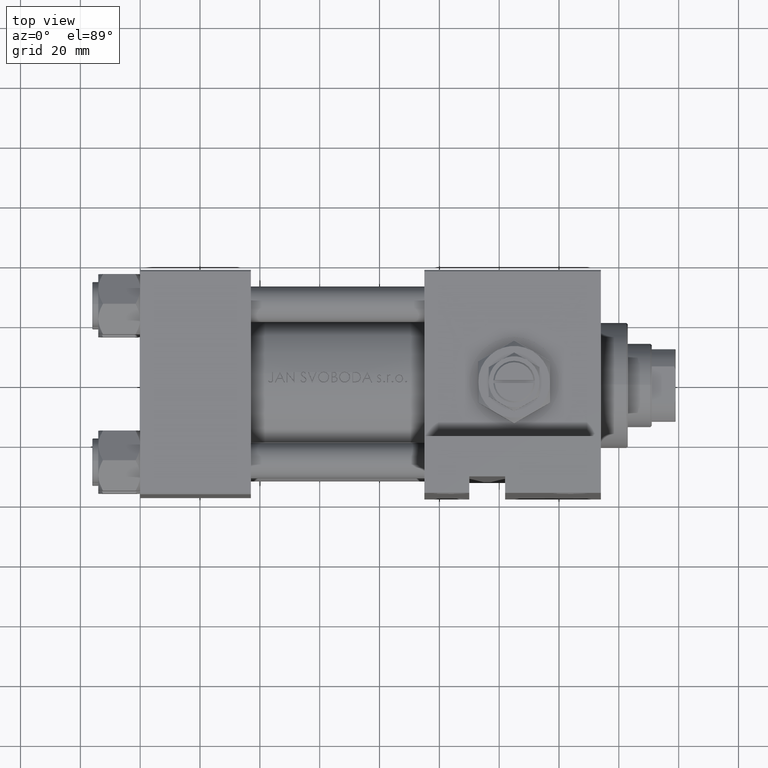
[diagram: clean part render]
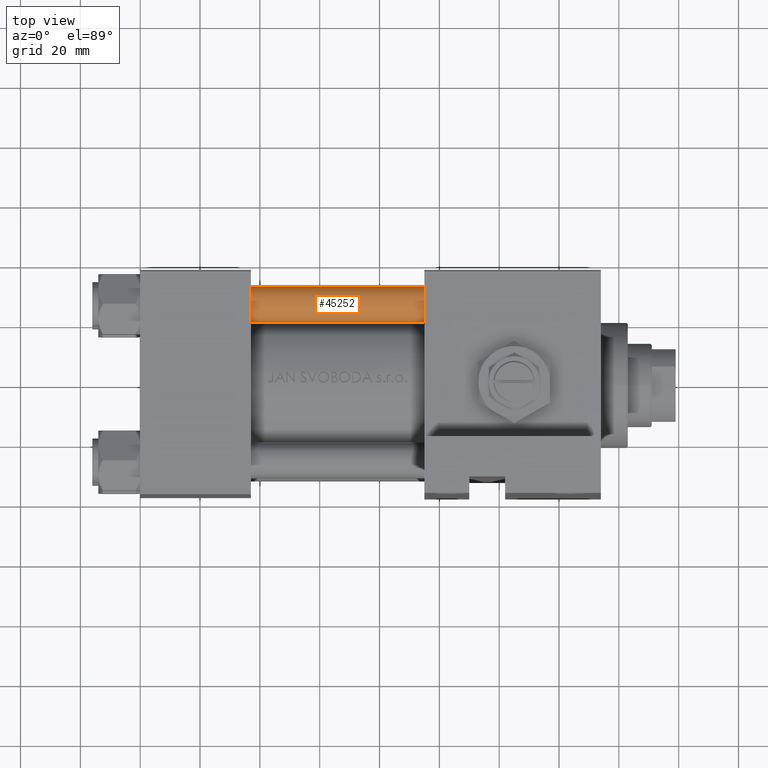
[diagram: same view with one face highlighted and labeled with its STEP entity id]
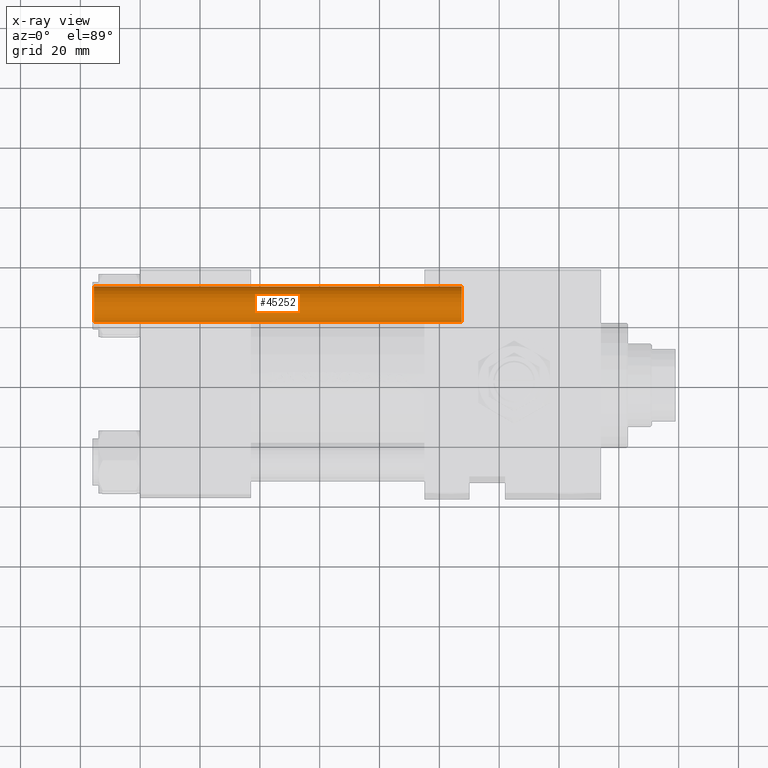
[diagram: x-ray of the same camera — body ghosted, the highlighted face saturated]
A machine part, top view. The second image highlights one B-rep face of the part: STEP entity #45252.
The next image is the same camera in x-ray: the body ghosted, the highlighted face saturated — about 0% of this face is hidden behind the body in this view.
In plain terms, the highlighted cylindrical surface (edge-blend (fillet) strip) has radius 6 mm, axis along (1, -0, 0).
Its self-contained STEP definition (entity closure, byte-faithful):
#328 = CARTESIAN_POINT ( 'NONE',  ( 6.000000000000000888, 7.347880794884120722E-16, 0.4999999999999865663 ) ) ;
#656 = CARTESIAN_POINT ( 'NONE',  ( 0.000000000000000000, 0.000000000000000000, 123.5000000000000426 ) ) ;
#849 = EDGE_CURVE ( 'NONE', #40905, #36671, #42448, .T. ) ;
#1734 = CARTESIAN_POINT ( 'NONE',  ( -6.000000000000000888, 0.000000000000000000, 124.0000000000000000 ) ) ;
#2134 = AXIS2_PLACEMENT_3D ( 'NONE', #27464, #12747, #42989 ) ;
#2477 = ORIENTED_EDGE ( 'NONE', *, *, #2489, .T. ) ;
#2489 = EDGE_CURVE ( 'NONE', #33641, #23545, #41728, .T. ) ;
#4711 = ORIENTED_EDGE ( 'NONE', *, *, #849, .T. ) ;
#5312 = LINE ( 'NONE', #40293, #28656 ) ;
#8997 = DIRECTION ( 'NONE',  ( -0.000000000000000000, -0.000000000000000000, -1.000000000000000000 ) ) ;
#12747 = DIRECTION ( 'NONE',  ( -0.000000000000000000, -0.000000000000000000, -1.000000000000000000 ) ) ;
#12823 = DIRECTION ( 'NONE',  ( -0.000000000000000000, -0.000000000000000000, 1.000000000000000000 ) ) ;
#12993 = LINE ( 'NONE', #1734, #30883 ) ;
#13551 = DIRECTION ( 'NONE',  ( -0.000000000000000000, -0.000000000000000000, -1.000000000000000000 ) ) ;
#13936 = CARTESIAN_POINT ( 'NONE',  ( -6.000000000000000888, 0.000000000000000000, 123.5000000000000426 ) ) ;
#15344 = EDGE_CURVE ( 'NONE', #33641, #36671, #5312, .T. ) ;
#19613 = EDGE_LOOP ( 'NONE', ( #23132, #2477, #32188, #4711 ) ) ;
#20715 = FACE_OUTER_BOUND ( 'NONE', #19613, .T. ) ;
#20878 = AXIS2_PLACEMENT_3D ( 'NONE', #24520, #12823, #28777 ) ;
#23132 = ORIENTED_EDGE ( 'NONE', *, *, #15344, .F. ) ;
#23545 = VERTEX_POINT ( 'NONE', #13936 ) ;
#24520 = CARTESIAN_POINT ( 'NONE',  ( 0.000000000000000000, 0.000000000000000000, 0.4999999999999865663 ) ) ;
#27127 = DIRECTION ( 'NONE',  ( 0.000000000000000000, 0.000000000000000000, -1.000000000000000000 ) ) ;
#27464 = CARTESIAN_POINT ( 'NONE',  ( 0.000000000000000000, 0.000000000000000000, 124.0000000000000000 ) ) ;
#28656 = VECTOR ( 'NONE', #13551, 1000.000000000000000 ) ;
#28777 = DIRECTION ( 'NONE',  ( 1.000000000000000000, 0.000000000000000000, 0.000000000000000000 ) ) ;
#30883 = VECTOR ( 'NONE', #8997, 1000.000000000000000 ) ;
#31330 = AXIS2_PLACEMENT_3D ( 'NONE', #656, #27127, #33921 ) ;
#32188 = ORIENTED_EDGE ( 'NONE', *, *, #45229, .T. ) ;
#33641 = VERTEX_POINT ( 'NONE', #34432 ) ;
#33921 = DIRECTION ( 'NONE',  ( 1.000000000000000000, 0.000000000000000000, 0.000000000000000000 ) ) ;
#34432 = CARTESIAN_POINT ( 'NONE',  ( 6.000000000000000888, 7.347880794884120722E-16, 123.5000000000000426 ) ) ;
#34518 = CARTESIAN_POINT ( 'NONE',  ( -6.000000000000000888, 0.000000000000000000, 0.4999999999999865663 ) ) ;
#35730 = CYLINDRICAL_SURFACE ( 'NONE', #2134, 6.000000000000000888 ) ;
#36671 = VERTEX_POINT ( 'NONE', #328 ) ;
#40293 = CARTESIAN_POINT ( 'NONE',  ( 6.000000000000000888, 7.347880794884120722E-16, 124.0000000000000000 ) ) ;
#40905 = VERTEX_POINT ( 'NONE', #34518 ) ;
#41728 = CIRCLE ( 'NONE', #31330, 6.000000000000000888 ) ;
#42448 = CIRCLE ( 'NONE', #20878, 6.000000000000000888 ) ;
#42989 = DIRECTION ( 'NONE',  ( -1.000000000000000000, 0.000000000000000000, 0.000000000000000000 ) ) ;
#45229 = EDGE_CURVE ( 'NONE', #23545, #40905, #12993, .T. ) ;
#45252 = ADVANCED_FACE ( 'NONE', ( #20715 ), #35730, .T. ) ;